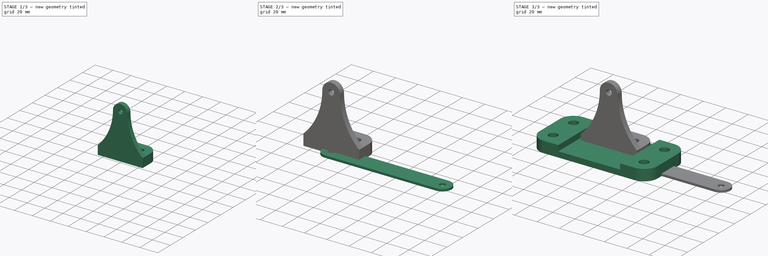
[diagram: build sequence overview — one tinted view per stage of 3, left to right]
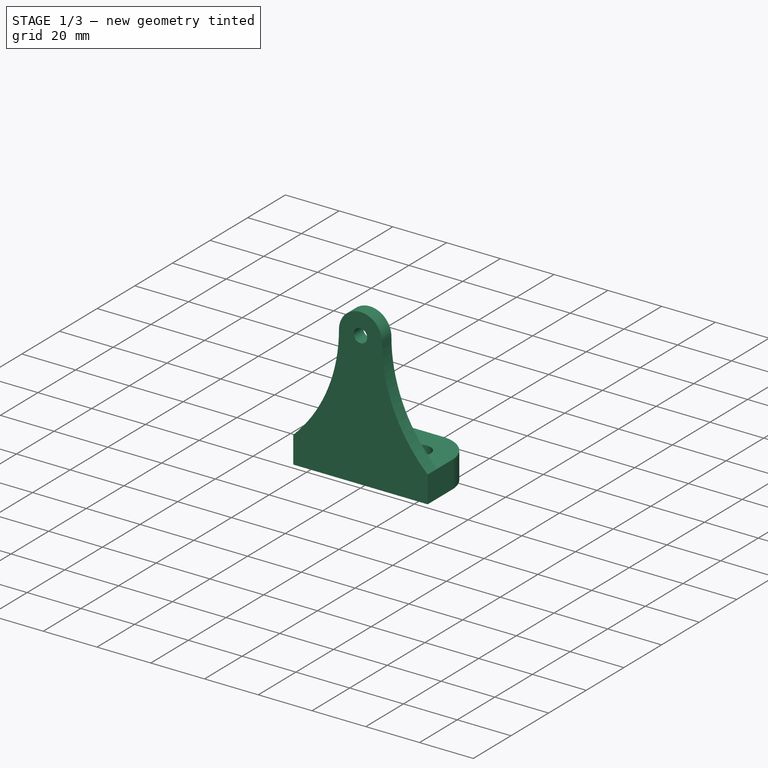
[diagram: stage 1 of 3 — iso view after this stage's code; geometry added in this stage tinted green]
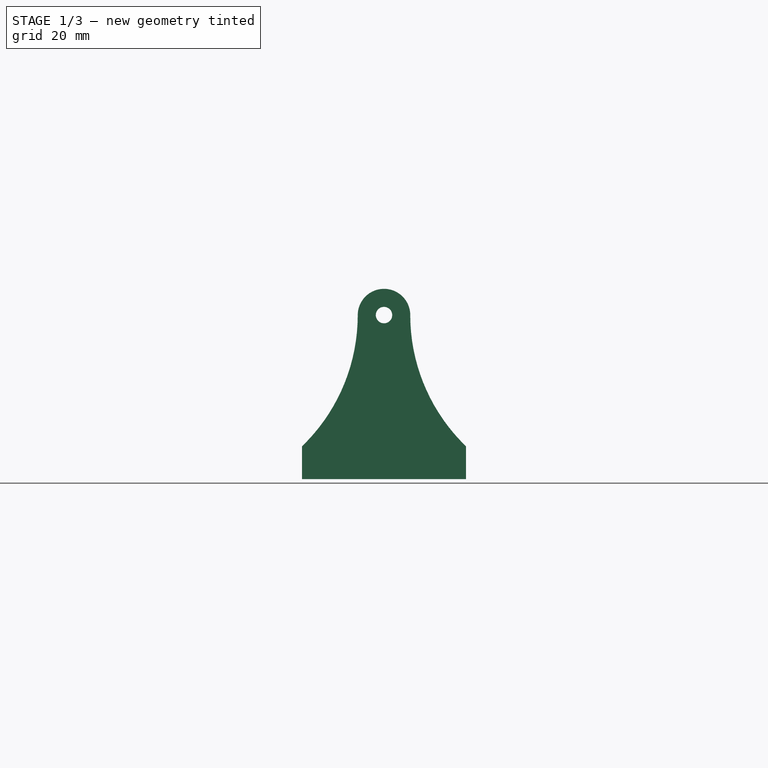
[diagram: stage 1 of 3 — front view after this stage's code; geometry added in this stage tinted green]
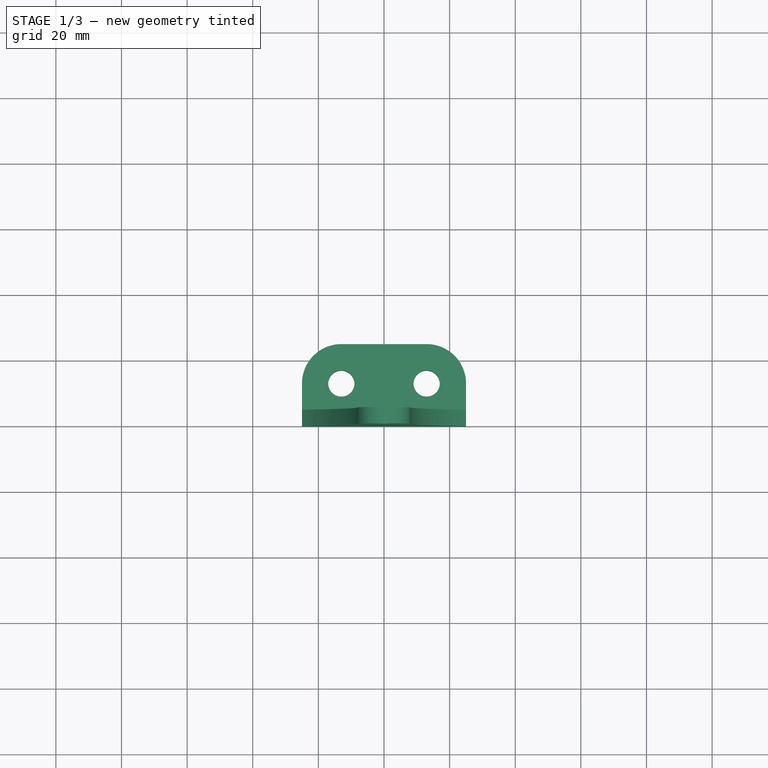
[diagram: stage 1 of 3 — top view after this stage's code; geometry added in this stage tinted green]
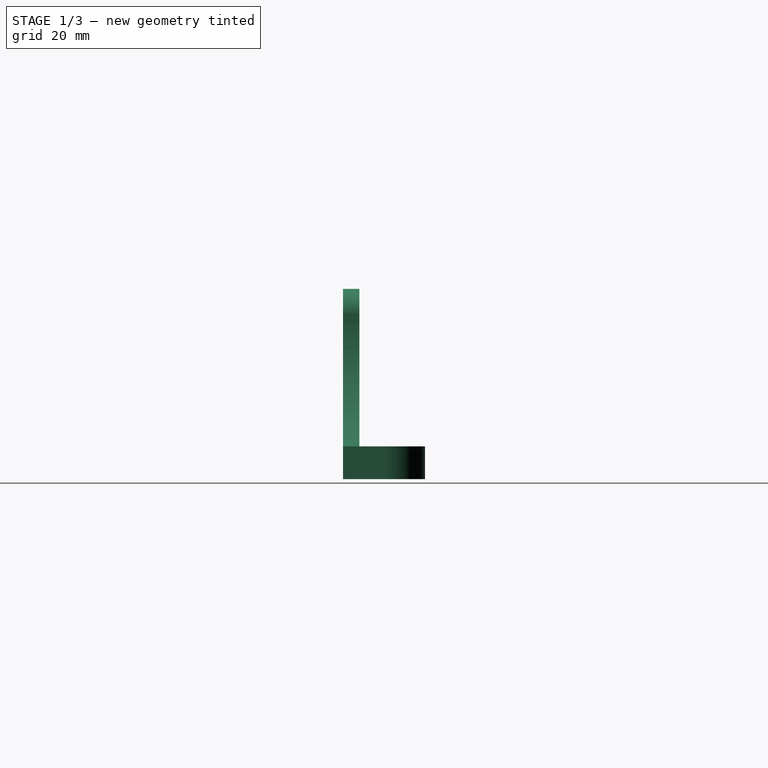
[diagram: stage 1 of 3 — right view after this stage's code; geometry added in this stage tinted green]
FCSTD DOCUMENT  (FreeCAD 1.0R39319 (Git))
Label: Base-Bracket(parts)
License: All rights reserved
LicenseURL: https://en.wikipedia.org/wiki/All_rights_reserved
objects: TechDraw::DrawViewDimension×10, Sketcher::SketchObject×6, PartDesign::Pad×4, TechDraw::DrawProjGroupItem×4, PartDesign::Body×3, TechDraw::DrawViewBalloon×3, PartDesign::Pocket×1, TechDraw::DrawSVGTemplate×1, TechDraw::DrawViewAnnotation×1, TechDraw::DrawProjGroup×1, TechDraw::DrawPage×1
note: 42 computed .brp shape members not serialized (recipe doc carries the construction recipe); baked Part::Feature solids carry a one-line shape summary decoded from their .brp

FEATURE [PartDesign::Body] Body  label="Base"
  AllowCompound = false
  Group = -> [Sketch,Pad,Sketch001,Pocket]
  Origin = -> Origin
  Tip = -> Pocket
FEATURE [Sketcher::SketchObject] Sketch002
  ArcFitTolerance = 1e-06
  AttachmentSupport = -> [XY_Plane001]
  FullyConstrained = true
  MakeInternals = false
  MapMode = 5
  sketch-geometry (10):
    g0: LineSegment StartX=-25 StartY=13 StartZ=0 EndX=-25 EndY=0 EndZ=0
    g1: LineSegment StartX=-25 StartY=0 StartZ=0 EndX=25 EndY=0 EndZ=0
    g2: LineSegment StartX=25 StartY=0 StartZ=0 EndX=25 EndY=13 EndZ=0
    g3: LineSegment StartX=13 StartY=25 StartZ=0 EndX=-13 EndY=25 EndZ=0
    g4: ArcOfCircle CenterX=-13 CenterY=13 CenterZ=0 NormalX=0 NormalY=0 NormalZ=1 AngleXU=0 Radius=12 StartAngle=1.5708 EndAngle=3.14159
    g5: GeomPoint [constr] X=-25 Y=25 Z=0
    g6: ArcOfCircle CenterX=13 CenterY=13 CenterZ=0 NormalX=0 NormalY=0 NormalZ=1 AngleXU=0 Radius=12 StartAngle=0 EndAngle=1.5708
    g7: GeomPoint [constr] X=25 Y=25 Z=0
    g8: Circle CenterX=-13 CenterY=13 CenterZ=0 NormalX=0 NormalY=0 NormalZ=1 AngleXU=0 Radius=4
    g9: Circle CenterX=13 CenterY=13 CenterZ=0 NormalX=0 NormalY=0 NormalZ=1 AngleXU=0 Radius=4
  constraints (24):
    c: Coincident(g0,g1)
    c: Coincident(g1,g2)
    c: Vertical(g0)
    c: Vertical(g2)
    c: Horizontal(g1)
    c: Horizontal(g3)
    c: PointOnObject(g5,g3)
    c: PointOnObject(g5,g0)
    c: Tangent(g3,g4) = -1.5708
    c: Tangent(g0,g4) = -1.5708
    c: PointOnObject(g7,g3)
    c: PointOnObject(g7,g2)
    c: Tangent(g3,g6) = -1.5708
    c: Tangent(g2,g6) = -1.5708
    c: PointOnObject(g0,g-1)
    c: Distance(g2,g0) = 50
    c: Distance(g1,g3) = 25
    c: Equal(g4,g6)
    c: Radius(g4) = 12
    c: Coincident(g8,g4)
    c: Coincident(g9,g6)
    c: Distance(g-2,g0) = 25
    c: Diameter(g8) = 8
    c: Equal(g8,g9)
FEATURE [PartDesign::Pad] Pad001
  Direction = (0,0,1)
  Length = 10
  Length2 = 10
  Profile = -> Sketch002
  ReferenceAxis = -> Sketch002 [N_Axis]
  Refine = true
  Suppressed = false
  Type = 0
FEATURE [Sketcher::SketchObject] Sketch003
  ArcFitTolerance = 1e-06
  AttachmentSupport = -> [Pad001]
  ExternalGeometry = -> [Pad001]
  FullyConstrained = true
  MakeInternals = false
  MapMode = 5
  Placement = pos=(0,0,0) rot=(1,0,0;1.5708rad)
  sketch-geometry (5):
    g0: ArcOfCircle CenterX=-63.5588 CenterY=50 CenterZ=0 NormalX=0 NormalY=0 NormalZ=1 AngleXU=0 Radius=55.5588 StartAngle=5.47944 EndAngle=6.28319
    g1: ArcOfCircle CenterX=0 CenterY=50 CenterZ=0 NormalX=0 NormalY=0 NormalZ=1 AngleXU=0 Radius=8 StartAngle=0 EndAngle=3.14159
    g2: ArcOfCircle CenterX=63.5588 CenterY=50 CenterZ=0 NormalX=0 NormalY=0 NormalZ=1 AngleXU=0 Radius=55.5588 StartAngle=3.14159 EndAngle=3.94533
    g3: Circle CenterX=0 CenterY=50 CenterZ=0 NormalX=0 NormalY=0 NormalZ=1 AngleXU=0 Radius=2.5
    g4: LineSegment StartX=-25 StartY=10 StartZ=0 EndX=25 EndY=10 EndZ=0
  constraints (13):
    c: Tangent(g0,g1) = 1.5708
    c: Tangent(g1,g2) = 1.5708
    c: Coincident(g2,g-4)
    c: Coincident(g0,g-3)
    c: Horizontal(g0,g1)
    c: PointOnObject(g1,g-2)
    c: Horizontal(g1,g1)
    c: DistanceY(g-1,g1) = 50
    c: Radius(g1) = 8
    c: Coincident(g3,g1)
    c: Diameter(g3) = 5
    c: Coincident(g4,g0)
    c: Coincident(g4,g2)
FEATURE [PartDesign::Pad] Pad002
  BaseFeature = -> Pad001
  Direction = (0,-1,2e-16)
  Length = 5
  Length2 = 10
  Profile = -> Sketch003
  ReferenceAxis = -> Sketch003 [N_Axis]
  Refine = true
  Reversed = true
  Suppressed = false
  Type = 0
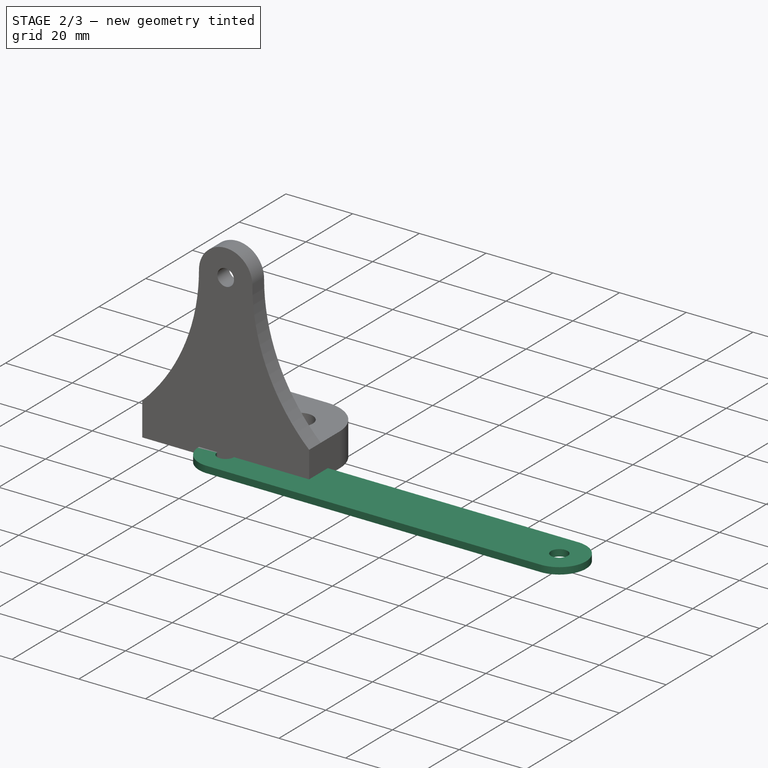
[diagram: stage 2 of 3 — iso view after this stage's code; geometry added in this stage tinted green]
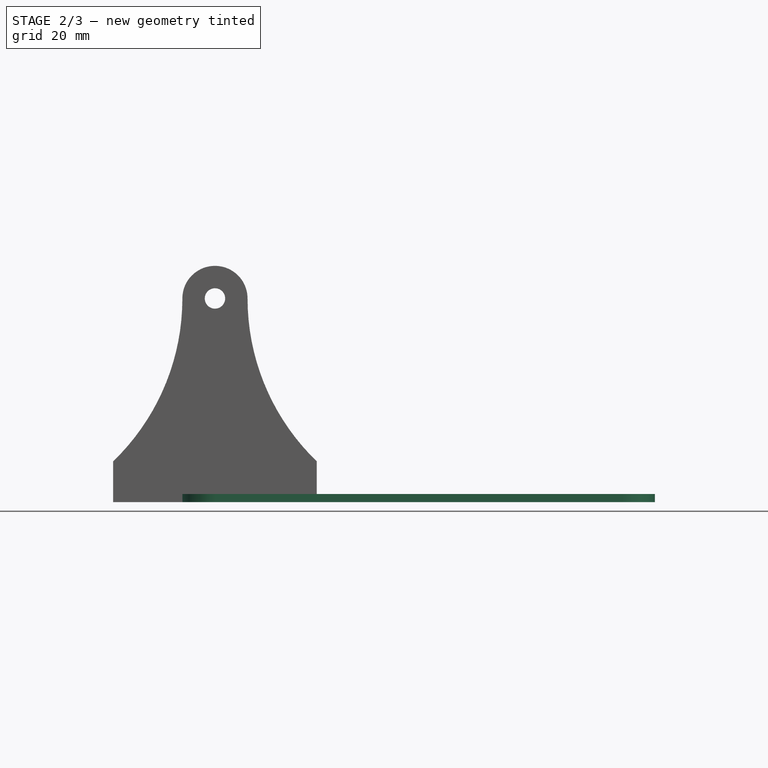
[diagram: stage 2 of 3 — front view after this stage's code; geometry added in this stage tinted green]
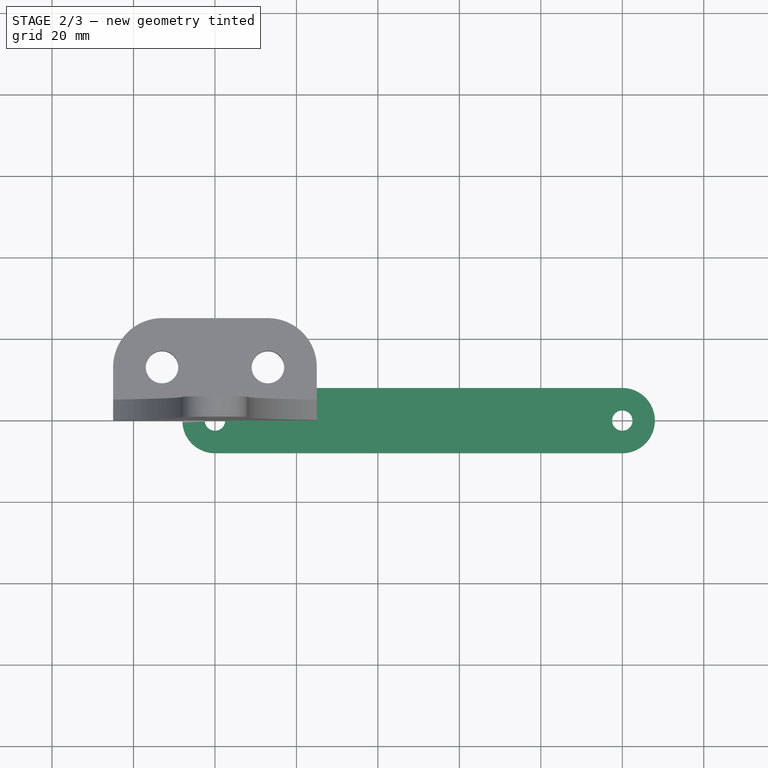
[diagram: stage 2 of 3 — top view after this stage's code; geometry added in this stage tinted green]
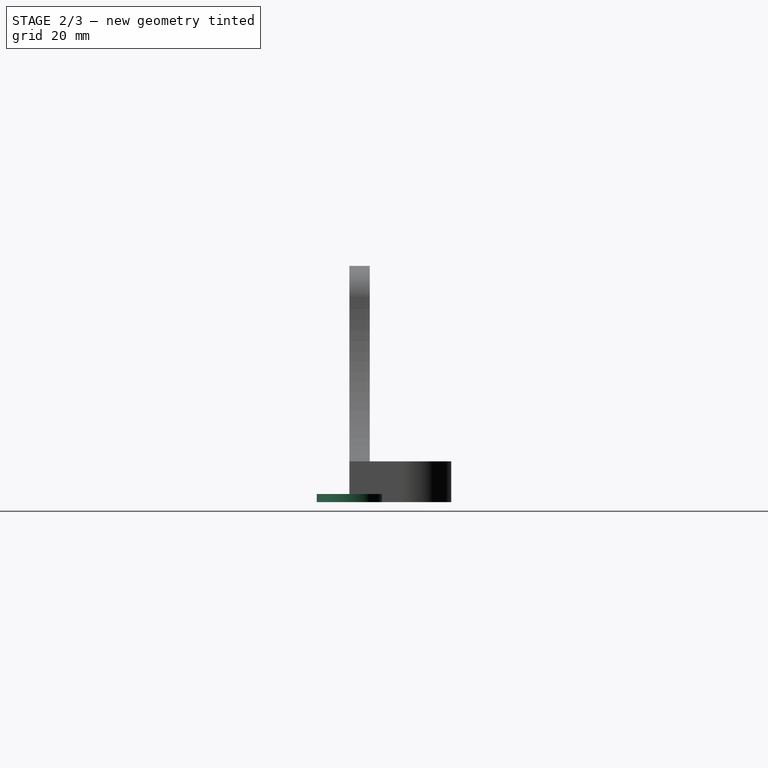
[diagram: stage 2 of 3 — right view after this stage's code; geometry added in this stage tinted green]
FEATURE [Sketcher::SketchObject] Sketch004
  ArcFitTolerance = 1e-06
  AttachmentSupport = -> [XY_Plane002]
  FullyConstrained = true
  MakeInternals = false
  MapMode = 5
  sketch-geometry (6):
    g0: ArcOfCircle CenterX=0 CenterY=0 CenterZ=0 NormalX=0 NormalY=0 NormalZ=1 AngleXU=0 Radius=8 StartAngle=1.5708 EndAngle=4.71239
    g1: ArcOfCircle CenterX=100 CenterY=7e-16 CenterZ=0 NormalX=0 NormalY=0 NormalZ=1 AngleXU=0 Radius=8 StartAngle=4.71239 EndAngle=7.85398
    g2: LineSegment StartX=-5.662e-13 StartY=8 StartZ=0 EndX=100 EndY=8 EndZ=0
    g3: LineSegment StartX=-1.5e-15 StartY=-8 StartZ=0 EndX=100 EndY=-8 EndZ=0
    g4: Circle CenterX=0 CenterY=0 CenterZ=0 NormalX=0 NormalY=0 NormalZ=1 AngleXU=0 Radius=2.5
    g5: Circle CenterX=100 CenterY=7e-16 CenterZ=0 NormalX=0 NormalY=0 NormalZ=1 AngleXU=0 Radius=2.5
  constraints (13):
    c: Tangent(g0,g2) = 1.5708
    c: Tangent(g0,g3) = -1.5708
    c: Tangent(g1,g2) = 1.5708
    c: Tangent(g1,g3) = -1.5708
    c: Equal(g0,g1)
    c: Horizontal(g3)
    c: Coincident(g0,g-1)
    c: Radius(g0) = 8
    c: Coincident(g4,g0)
    c: Coincident(g5,g1)
    c: Diameter(g4) = 5
    c: Equal(g4,g5)
    c: DistanceX(g2,g2) = 100
FEATURE [PartDesign::Pad] Pad003
  Direction = (0,0,1)
  Length = 2
  Length2 = 10
  Profile = -> Sketch004
  ReferenceAxis = -> Sketch004 [N_Axis]
  Refine = true
  Suppressed = false
  Type = 0
FEATURE [PartDesign::Body] Body002  label="Link"
  AllowCompound = false
  Group = -> [Sketch004,Pad003]
  Origin = -> Origin002
  Tip = -> Pad003
FEATURE [Sketcher::SketchObject] Sketch005
  ArcFitTolerance = 1e-06
  AttachmentSupport = -> [Pad002]
  ExternalGeometry = -> [Pad002]
  FullyConstrained = true
  MakeInternals = false
  MapMode = 5
  Placement = pos=(25,0,0) rot=(0.57735,0.57735,0.57735;2.0944rad)
FEATURE [PartDesign::Body] Body001  label="Bracket"
  AllowCompound = false
  Group = -> [Sketch002,Pad001,Sketch003,Pad002,Sketch005]
  Origin = -> Origin001
  Tip = -> Pad002
FEATURE [TechDraw::DrawSVGTemplate] Template
  EditableTexts = AuthorName=AUTHOR NAME; CheckDate=CHECK DATE; CreationDate=29-11-2025; DrawingNumber=NUMBER; FC-Title=Base-Bracket(parts); SheetNumber=1 / 1; Subtitle=SUBTITLE; SupervisorName=SUPERVISOR NAME; Weight=WEIGHT; scale=1 : 1
  Height = 297
  Orientation = 1
  Template = D:/New folder/FreeCAD 1.0/data/Mod/TechDraw/Templates/A3_Landscape_TD.svg
  Width = 420
FEATURE [TechDraw::DrawProjGroupItem] View  label="Front"
  CoarseView = false
  Direction = (0,-1,0)
  Focus = 100
  HardHidden = true
  IsoCount = 0
  IsoHidden = false
  IsoVisible = false
  LockPosition = true
  Perspective = false
  Rotation = 0
  RotationVector = (1,0,0)
  Scale = 2
  ScaleType = 2
  ScrubCount = 1
  SeamHidden = false
  SeamVisible = false
  SmoothHidden = false
  SmoothVisible = true
  Source = -> [Body001]
  Type = 0
  X = 0
  XDirection = (1,0,0)
  Y = 0
FEATURE [TechDraw::DrawProjGroupItem] ProjItem  label="Top"
  CoarseView = false
  Direction = (0,0,1)
  Focus = 100
  HardHidden = false
  IsoCount = 0
  IsoHidden = false
  IsoVisible = false
  LockPosition = false
  Perspective = false
  Rotation = 0
  RotationVector = (1,0,0)
  Scale = 2
  ScaleType = 0
  ScrubCount = 1
  SeamHidden = false
  SeamVisible = false
  SmoothHidden = false
  SmoothVisible = true
  Source = -> [Body001]
  Type = 4
  X = 0
  XDirection = (1,0,0)
  Y = 113
FEATURE [TechDraw::DrawProjGroupItem] ProjItem001  label="Right"
  CoarseView = false
  Direction = (1,-1e-16,0)
  Focus = 100
  HardHidden = true
  IsoCount = 0
  IsoHidden = false
  IsoVisible = false
  LockPosition = false
  Perspective = false
  Rotation = 0
  RotationVector = (1,0,0)
  Scale = 2
  ScaleType = 0
  ScrubCount = 1
  SeamHidden = false
  SeamVisible = false
  SmoothHidden = false
  SmoothVisible = true
  Source = -> [Body001]
  Type = 2
  X = 105.57
  XDirection = (1e-16,1,0)
  Y = 0
FEATURE [TechDraw::DrawViewDimension] Dimension
  AngleOverride = false
  Arbitrary = false
  ArbitraryTolerances = false
  BoxCorners = (2) [(-25,-12.5,-1e-07),(25,12.5,1e-07)]
  EqualTolerance = true
  ExtensionAngle = 0
  FormatSpec = ⌀%.2w
  FormatSpecOverTolerance = %+.2w
  FormatSpecUnderTolerance = %+.2w
  Inverted = false
  LineAngle = 0
  LockPosition = false
  MeasureType = 1
  OverTolerance = 0
  References2D = -> [ProjItem]
  Rotation = 0
  ScaleType = 0
  TheoreticalExact = false
  Type = 5
  UnderTolerance = 0
  X = 66.6698
  Y = 31.206
FEATURE [TechDraw::DrawViewDimension] Dimension001
  AngleOverride = false
  Arbitrary = false
  ArbitraryTolerances = false
  BoxCorners = (2) [(-25,-12.5,-1e-07),(25,12.5,1e-07)]
  EqualTolerance = true
  ExtensionAngle = 0
  FormatSpec = %.2w
  FormatSpecOverTolerance = %+.2w
  FormatSpecUnderTolerance = %+.2w
  Inverted = false
  LineAngle = 0
  LockPosition = false
  MeasureType = 1
  OverTolerance = 0
  References2D = -> [ProjItem]
  Rotation = 0
  ScaleType = 0
  TheoreticalExact = false
  Type = 1
  UnderTolerance = 0
  X = 0
  Y = 23.8502
FEATURE [TechDraw::DrawViewDimension] Dimension002
  AngleOverride = false
  Arbitrary = false
  ArbitraryTolerances = false
  BoxCorners = (2) [(-25,-12.5,-1e-07),(25,12.5,1e-07)]
  EqualTolerance = true
  ExtensionAngle = 0
  FormatSpec = %.2w
  FormatSpecOverTolerance = %+.2w
  FormatSpecUnderTolerance = %+.2w
  Inverted = false
  LineAngle = 0
  LockPosition = false
  MeasureType = 1
  OverTolerance = 0
  References2D = -> [ProjItem]
  Rotation = 0
  ScaleType = 0
  TheoreticalExact = false
  Type = 2
  UnderTolerance = 0
  X = 61.1481
  Y = -12.0047
FEATURE [TechDraw::DrawViewDimension] Dimension003
  AngleOverride = false
  Arbitrary = false
  ArbitraryTolerances = false
  BoxCorners = (2) [(-25,-29,0),(25,29,0)]
  EqualTolerance = true
  ExtensionAngle = 0
  FormatSpec = R%.2w
  FormatSpecOverTolerance = %+.2w
  FormatSpecUnderTolerance = %+.2w
  Inverted = false
  LineAngle = 0
  LockPosition = false
  MeasureType = 1
  OverTolerance = 0
  References2D = -> [View]
  Rotation = 0
  ScaleType = 0
  TheoreticalExact = false
  Type = 4
  UnderTolerance = 0
  X = 25.0287
  Y = 65.7477
FEATURE [TechDraw::DrawViewDimension] Dimension004
  AngleOverride = false
  Arbitrary = false
  ArbitraryTolerances = false
  BoxCorners = (2) [(-25,-29,0),(25,29,0)]
  EqualTolerance = true
  ExtensionAngle = 0
  FormatSpec = R%.2w
  FormatSpecOverTolerance = %+.2w
  FormatSpecUnderTolerance = %+.2w
  Inverted = false
  LineAngle = 0
  LockPosition = false
  MeasureType = 1
  OverTolerance = 0
  References2D = -> [View]
  Rotation = 0
  ScaleType = 0
  TheoreticalExact = false
  Type = 4
  UnderTolerance = 0
  X = 46.0634
  Y = 21.1562
FEATURE [TechDraw::DrawViewDimension] Dimension005
  AngleOverride = false
  Arbitrary = false
  ArbitraryTolerances = false
  BoxCorners = (2) [(-25,-29,0),(25,29,0)]
  EqualTolerance = true
  ExtensionAngle = 0
  FormatSpec = %.2w
  FormatSpecOverTolerance = %+.2w
  FormatSpecUnderTolerance = %+.2w
  Inverted = false
  LineAngle = 0
  LockPosition = false
  MeasureType = 1
  OverTolerance = 0
  References2D = -> [View]
  Rotation = 0
  ScaleType = 0
  TheoreticalExact = false
  Type = 1
  UnderTolerance = 0
  X = -3.27742
  Y = -47.192
FEATURE [TechDraw::DrawViewDimension] Dimension006
  AngleOverride = false
  Arbitrary = false
  ArbitraryTolerances = false
  BoxCorners = (2) [(-25,-29,0),(25,29,0)]
  EqualTolerance = true
  ExtensionAngle = 0
  FormatSpec = %.2w
  FormatSpecOverTolerance = %+.2w
  FormatSpecUnderTolerance = %+.2w
  Inverted = false
  LineAngle = 0
  LockPosition = false
  MeasureType = 1
  OverTolerance = 0
  References2D = -> [View]
  Rotation = 0
  ScaleType = 0
  TheoreticalExact = false
  Type = 0
  UnderTolerance = 0
  X = 28.1185
  Y = -16.9242
FEATURE [TechDraw::DrawViewDimension] Dimension007
  AngleOverride = false
  Arbitrary = false
  ArbitraryTolerances = false
  BoxCorners = (2) [(-12.5,-29,-1e-07),(12.5,29,1e-07)]
  EqualTolerance = true
  ExtensionAngle = 0
  FormatSpec = %.2w
  FormatSpecOverTolerance = %+.2w
  FormatSpecUnderTolerance = %+.2w
  Inverted = false
  LineAngle = 0
  LockPosition = false
  MeasureType = 1
  OverTolerance = 0
  References2D = -> [ProjItem001]
  Rotation = 0
  ScaleType = 0
  TheoreticalExact = false
  Type = 1
  UnderTolerance = 0
  X = -2.03249
  Y = 46.604
FEATURE [TechDraw::DrawViewDimension] Dimension008
  AngleOverride = false
  Arbitrary = false
  ArbitraryTolerances = false
  BoxCorners = (2) [(-12.5,-29,-1e-07),(12.5,29,1e-07)]
  EqualTolerance = true
  ExtensionAngle = 0
  FormatSpec = %.2w
  FormatSpecOverTolerance = %+.2w
  FormatSpecUnderTolerance = %+.2w
  Inverted = false
  LineAngle = 0
  LockPosition = false
  MeasureType = 1
  OverTolerance = 0
  References2D = -> [ProjItem001]
  Rotation = 0
  ScaleType = 0
  TheoreticalExact = false
  Type = 2
  UnderTolerance = 0
  X = 26.1461
  Y = 0
FEATURE [TechDraw::DrawViewDimension] Dimension009
  AngleOverride = false
  Arbitrary = false
  ArbitraryTolerances = false
  BoxCorners = (2) [(-25,-12.5,-1e-07),(25,12.5,1e-07)]
  EqualTolerance = true
  ExtensionAngle = 0
  FormatSpec = R%.2w
  FormatSpecOverTolerance = %+.2w
  FormatSpecUnderTolerance = %+.2w
  Inverted = false
  LineAngle = 0
  LockPosition = false
  MeasureType = 1
  OverTolerance = 0
  References2D = -> [ProjItem]
  Rotation = 0
  ScaleType = 0
  TheoreticalExact = false
  Type = 4
  UnderTolerance = 0
  X = -31.0982
  Y = 28.4482
FEATURE [TechDraw::DrawViewBalloon] Balloon
  BubbleShape = 0
  EndType = 0
  EndTypeScale = 1
  KinkLength = 5
  LockPosition = false
  OriginX = 19.6273
  OriginY = 10.626
  Rotation = 0
  ScaleType = 0
  ShapeScale = 1
  SourceView = -> ProjItem
  Text = 1
  TextWrapLen = -1
  X = 53.2215
  Y = 10.9801
FEATURE [TechDraw::DrawViewBalloon] Balloon001
  BubbleShape = 0
  EndType = 0
  EndTypeScale = 1
  KinkLength = 5
  LockPosition = false
  OriginX = 2.84606
  OriginY = 30.8134
  Rotation = 0
  ScaleType = 0
  ShapeScale = 1
  SourceView = -> Dimension004
  Text = 2
  TextWrapLen = -1
  X = 64.188
  Y = 64.2496
FEATURE [TechDraw::DrawViewBalloon] Balloon002
  BubbleShape = 0
  EndType = 0
  EndTypeScale = 1
  KinkLength = 5
  LockPosition = false
  OriginX = 8.81117
  OriginY = -17.8092
  Rotation = 0
  ScaleType = 0
  ShapeScale = 1
  SourceView = -> ProjItem001
  Text = 3
  TextWrapLen = -1
  X = 27.6805
  Y = -5.05262
FEATURE [TechDraw::DrawViewAnnotation] Annotation
  Font = osifont
  LineSpace = 100
  LockPosition = false
  MaxWidth = -1
  Rotation = 0
  ScaleType = 0
  Text = Bracket TechDraw 
  TextSize = 5
  TextStyle = 0
  X = 303.329
  Y = 276.69
FEATURE [TechDraw::DrawProjGroupItem] ProjItem002  label="FrontBottomRight"
  CoarseView = false
  Direction = (0.57735,-0.57735,-0.57735)
  Focus = 100
  HardHidden = false
  IsoCount = 0
  IsoHidden = false
  IsoVisible = false
  LockPosition = false
  Perspective = false
  Rotation = 0
  RotationVector = (1,0,0)
  Scale = 2
  ScaleType = 0
  ScrubCount = 1
  SeamHidden = false
  SeamVisible = false
  SmoothHidden = false
  SmoothVisible = true
  Source = -> [Body001]
  Type = 9
  X = 250.507
  XDirection = (0.707107,0.707107,0)
  Y = 28.796
FEATURE [TechDraw::DrawProjGroup] ProjGroup
  Anchor = -> View
  AutoDistribute = true
  LockPosition = false
  ProjectionType = 1
  Rotation = 0
  Scale = 2
  ScaleType = 2
  Source = -> [Body001]
  Views = -> [View,ProjItem,ProjItem001,ProjItem002]
  X = 75.7068
  Y = 137.341
  spacingX = 30
  spacingY = 30
FEATURE [TechDraw::DrawPage] Page
  KeepUpdated = true
  NextBalloonIndex = 4
  ProjectionType = 0
  Template = -> Template
  Views = -> [ProjGroup,Dimension,Dimension001,Dimension002,Dimension003,Dimension004,Dimension005,Dimension006,Dimension007,Dimension008,Dimension009,Balloon,Balloon001,Balloon002,Annotation]
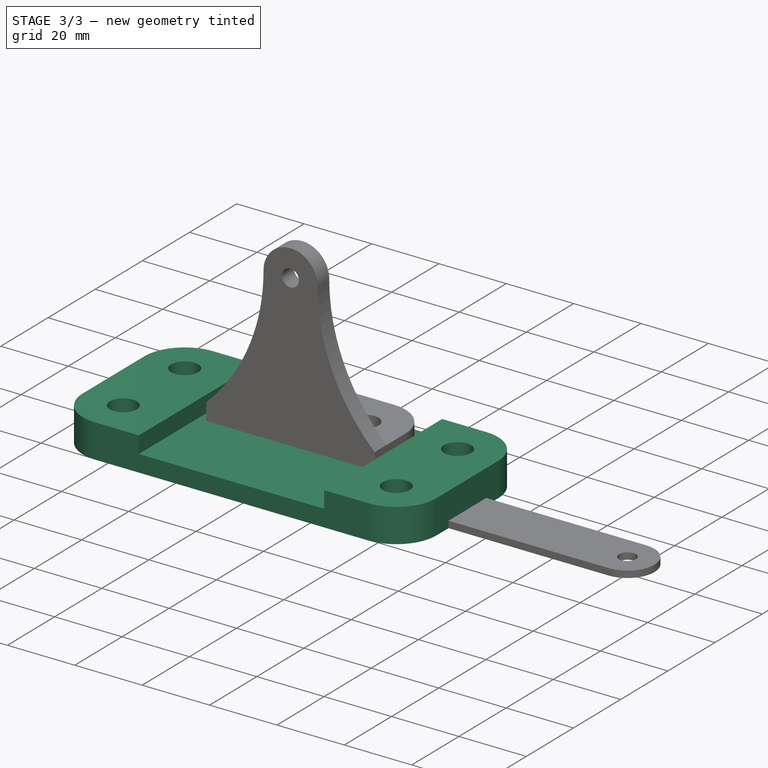
[diagram: stage 3 of 3 — iso view after this stage's code; geometry added in this stage tinted green]
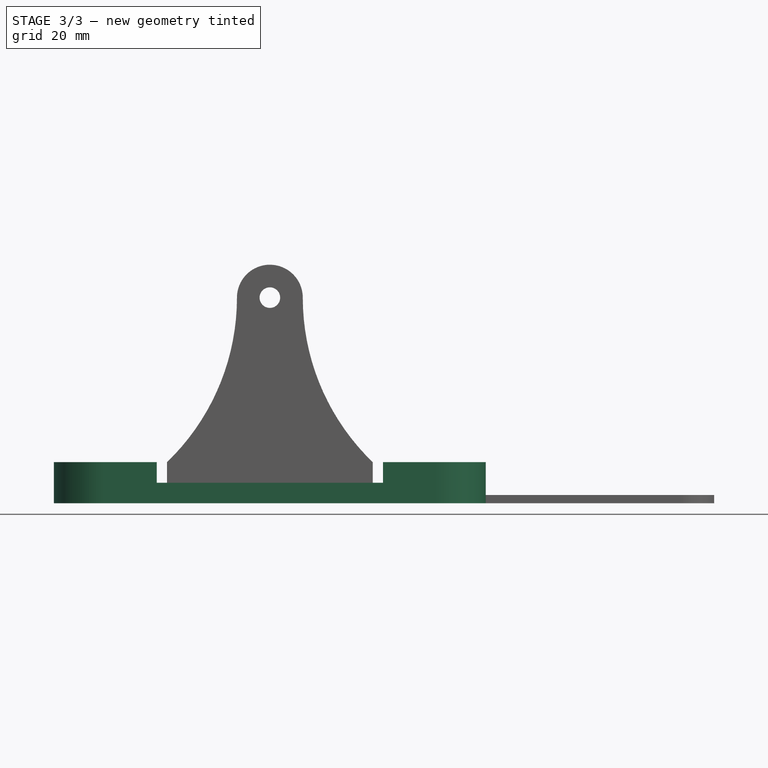
[diagram: stage 3 of 3 — front view after this stage's code; geometry added in this stage tinted green]
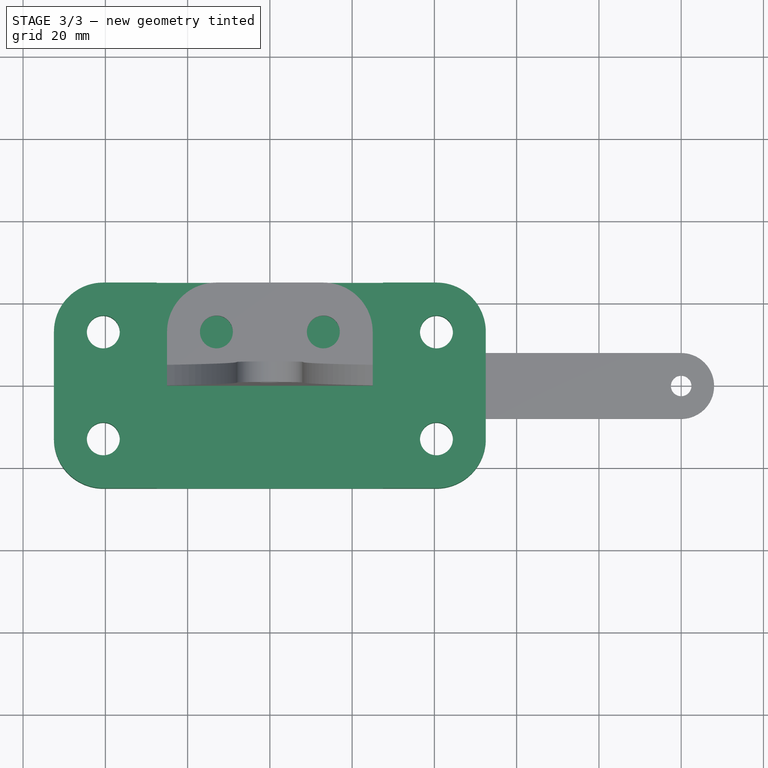
[diagram: stage 3 of 3 — top view after this stage's code; geometry added in this stage tinted green]
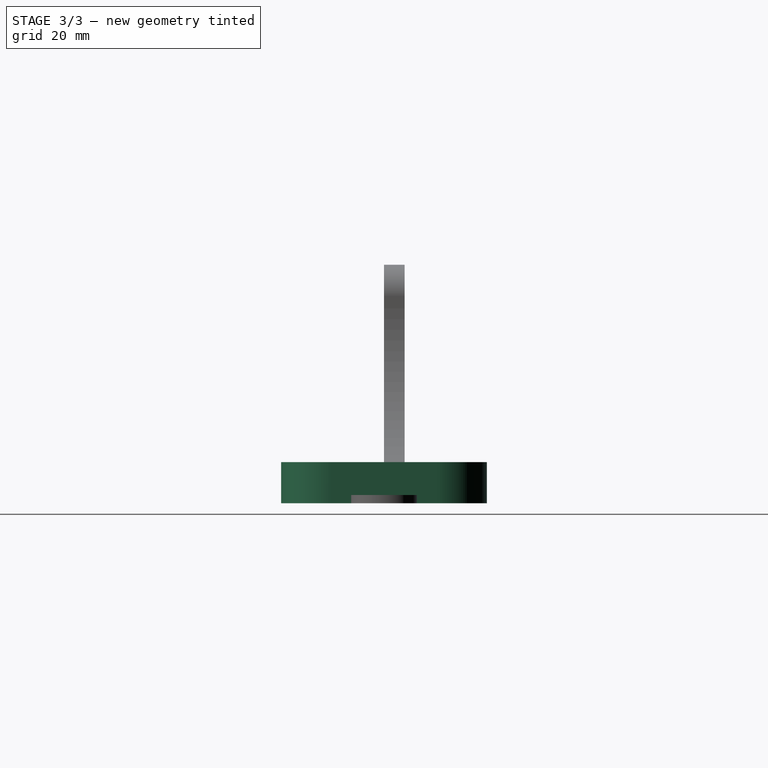
[diagram: stage 3 of 3 — right view after this stage's code; geometry added in this stage tinted green]
FEATURE [Sketcher::SketchObject] Sketch
  ArcFitTolerance = 1e-06
  AttachmentSupport = -> [XY_Plane]
  FullyConstrained = true
  MakeInternals = false
  MapMode = 5
  sketch-geometry (17):
    g0: LineSegment StartX=-52.5 StartY=13 StartZ=0 EndX=-52.5 EndY=-13 EndZ=0
    g1: LineSegment StartX=-40.5 StartY=-25 StartZ=0 EndX=40.5 EndY=-25 EndZ=0
    g2: LineSegment StartX=52.5 StartY=-13 StartZ=0 EndX=52.5 EndY=13 EndZ=0
    g3: LineSegment StartX=40.5 StartY=25 StartZ=0 EndX=-40.5 EndY=25 EndZ=0
    g4: GeomPoint [constr] X=0 Y=0 Z=0
    g5: ArcOfCircle CenterX=-40.5 CenterY=13 CenterZ=0 NormalX=0 NormalY=0 NormalZ=1 AngleXU=0 Radius=12 StartAngle=1.5708 EndAngle=3.14159
    g6: GeomPoint [constr] X=-52.5 Y=25 Z=0
    g7: ArcOfCircle CenterX=40.5 CenterY=13 CenterZ=0 NormalX=0 NormalY=0 NormalZ=1 AngleXU=0 Radius=12 StartAngle=0 EndAngle=1.5708
    g8: GeomPoint [constr] X=52.5 Y=25 Z=0
    g9: ArcOfCircle CenterX=40.5 CenterY=-13 CenterZ=0 NormalX=0 NormalY=0 NormalZ=1 AngleXU=0 Radius=12 StartAngle=4.71239 EndAngle=6.28319
    g10: GeomPoint [constr] X=52.5 Y=-25 Z=0
    g11: ArcOfCircle CenterX=-40.5 CenterY=-13 CenterZ=0 NormalX=0 NormalY=0 NormalZ=1 AngleXU=0 Radius=12 StartAngle=3.14159 EndAngle=4.71239
    g12: GeomPoint [constr] X=-52.5 Y=-25 Z=0
    g13: Circle CenterX=-40.5 CenterY=13 CenterZ=0 NormalX=0 NormalY=0 NormalZ=1 AngleXU=0 Radius=4
    g14: Circle CenterX=-40.5 CenterY=-13 CenterZ=0 NormalX=0 NormalY=0 NormalZ=1 AngleXU=0 Radius=4
    g15: Circle CenterX=40.5 CenterY=13 CenterZ=0 NormalX=0 NormalY=0 NormalZ=1 AngleXU=0 Radius=4
    g16: Circle CenterX=40.5 CenterY=-13 CenterZ=0 NormalX=0 NormalY=0 NormalZ=1 AngleXU=0 Radius=4
  constraints (36):
    c: Vertical(g0)
    c: Vertical(g2)
    c: Horizontal(g1)
    c: Horizontal(g3)
    c: Symmetric(g10,g6,g4)
    c: Coincident(g4,g-1)
    c: PointOnObject(g6,g3)
    c: PointOnObject(g6,g0)
    c: Tangent(g3,g5) = -1.5708
    c: Tangent(g0,g5) = -1.5708
    c: PointOnObject(g8,g3)
    c: PointOnObject(g8,g2)
    c: Tangent(g3,g7) = -1.5708
    c: Tangent(g2,g7) = -1.5708
    c: PointOnObject(g10,g1)
    c: PointOnObject(g10,g2)
    c: Tangent(g1,g9) = -1.5708
    c: Tangent(g2,g9) = -1.5708
    c: PointOnObject(g12,g1)
    c: PointOnObject(g12,g0)
    c: Tangent(g1,g11) = -1.5708
    c: Tangent(g0,g11) = -1.5708
    c: Equal(g5,g7)
    c: Equal(g7,g9)
    c: Equal(g9,g11)
    c: Distance(g1,g3) = 50
    c: Distance(g0,g2) = 105
    c: Radius(g7) = 12
    c: Coincident(g13,g5)
    c: Coincident(g14,g11)
    c: Diameter(g13) = 8
    c: Diameter(g14) = 8
    c: Diameter(g15) = 8
    c: Diameter(g16) = 8
    c: Block(g15)
    c: Block(g16)
FEATURE [PartDesign::Pad] Pad
  Direction = (0,0,1)
  Length = 10
  Length2 = 10
  Profile = -> Sketch
  ReferenceAxis = -> Sketch [N_Axis]
  Refine = true
  Suppressed = false
  Type = 0
FEATURE [Sketcher::SketchObject] Sketch001
  ArcFitTolerance = 1e-06
  AttachmentSupport = -> [Pad]
  ExternalGeometry = -> [Pad]
  FullyConstrained = true
  MakeInternals = false
  MapMode = 5
  Placement = pos=(0,0,10) rot=(0,0,1;0rad)
  sketch-geometry (5):
    g0: LineSegment StartX=-27.5 StartY=25 StartZ=0 EndX=-27.5 EndY=-25 EndZ=0
    g1: LineSegment StartX=-27.5 StartY=-25 StartZ=0 EndX=27.5 EndY=-25 EndZ=0
    g2: LineSegment StartX=27.5 StartY=-25 StartZ=0 EndX=27.5 EndY=25 EndZ=0
    g3: LineSegment StartX=27.5 StartY=25 StartZ=0 EndX=-27.5 EndY=25 EndZ=0
    g4: GeomPoint [constr] X=0 Y=0 Z=0
  constraints (12):
    c: Coincident(g0,g1)
    c: Coincident(g1,g2)
    c: Coincident(g2,g3)
    c: Coincident(g3,g0)
    c: Vertical(g0)
    c: Vertical(g2)
    c: Horizontal(g1)
    c: Horizontal(g3)
    c: Symmetric(g2,g0,g4)
    c: Coincident(g4,g-1)
    c: PointOnObject(g0,g-3)
    c: Distance(g2,g0) = 55
FEATURE [PartDesign::Pocket] Pocket
  BaseFeature = -> Pad
  Direction = (0,0,-1)
  Length = 5
  Length2 = 5
  Profile = -> Sketch001
  ReferenceAxis = -> Sketch001 [N_Axis]
  Refine = true
  Suppressed = false
  Type = 0
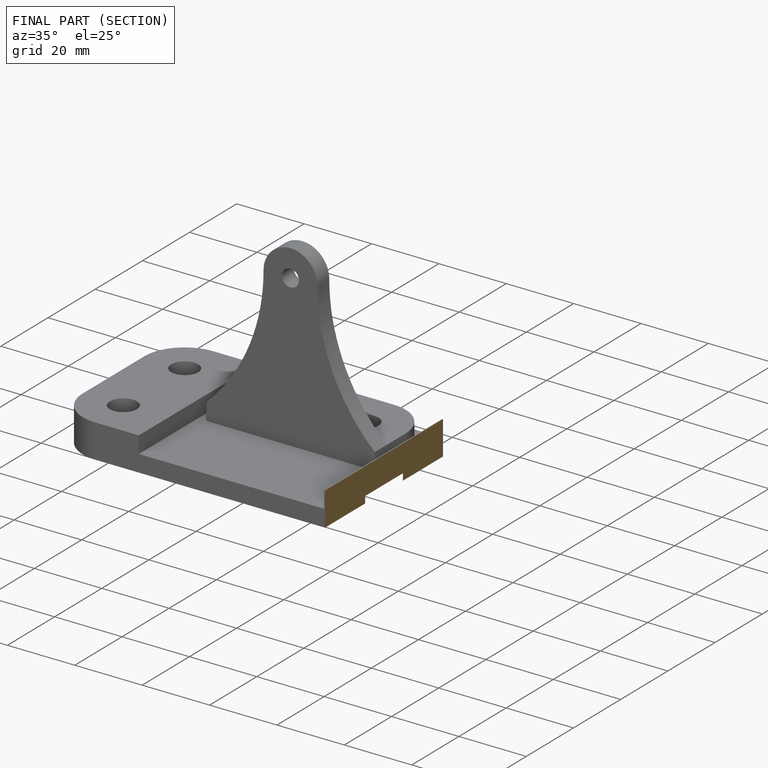
[diagram: finished part — half-section view (interior)]
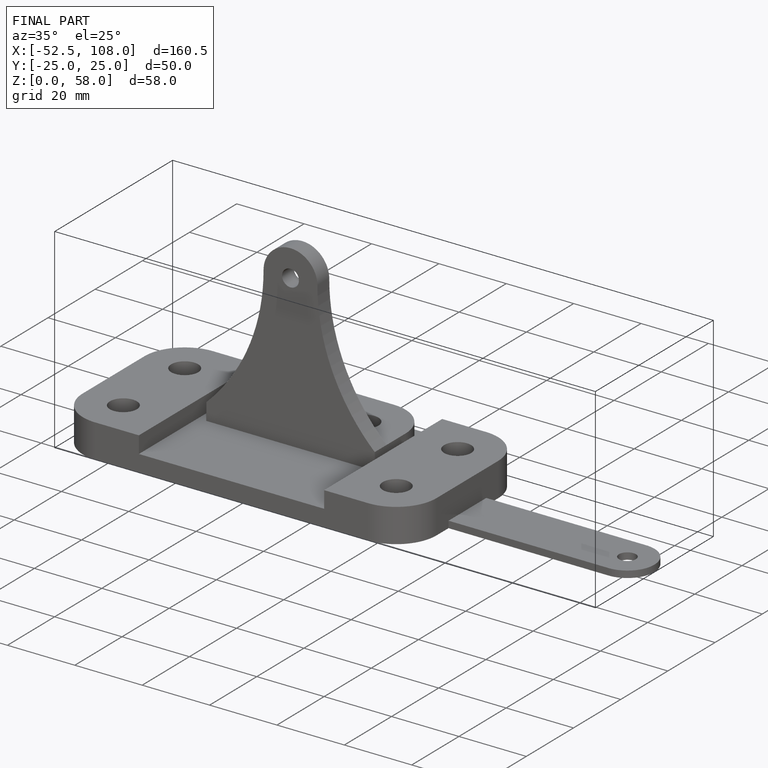
[diagram: finished part — iso view with bounding-box wireframe]
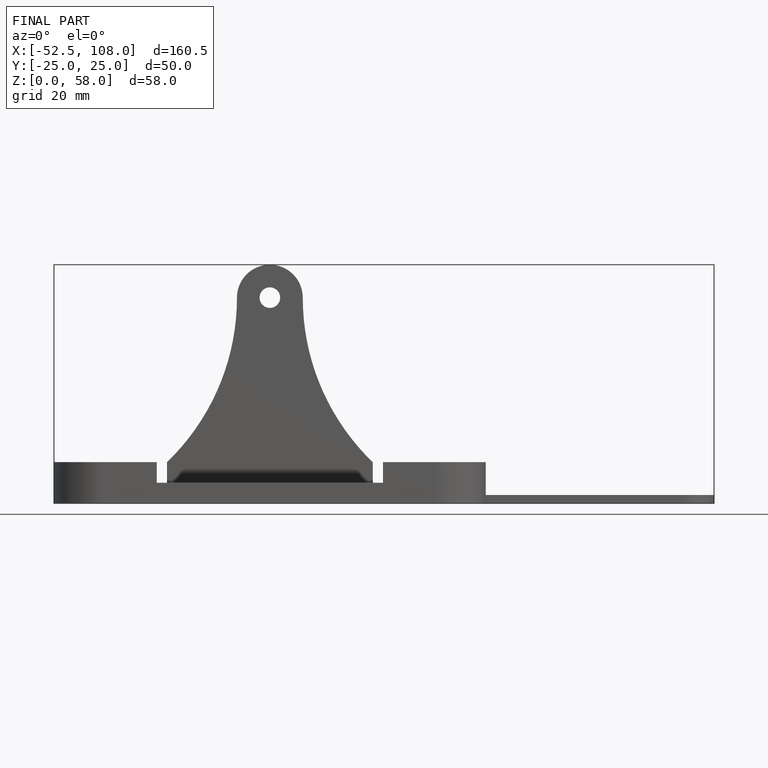
[diagram: finished part — front view with bounding-box wireframe]
